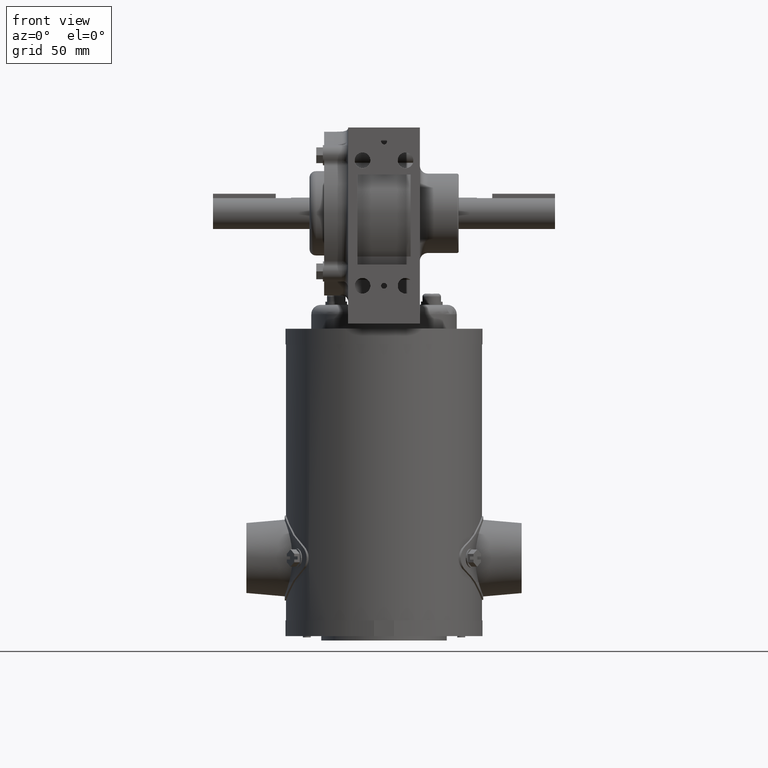
[diagram: clean part render]
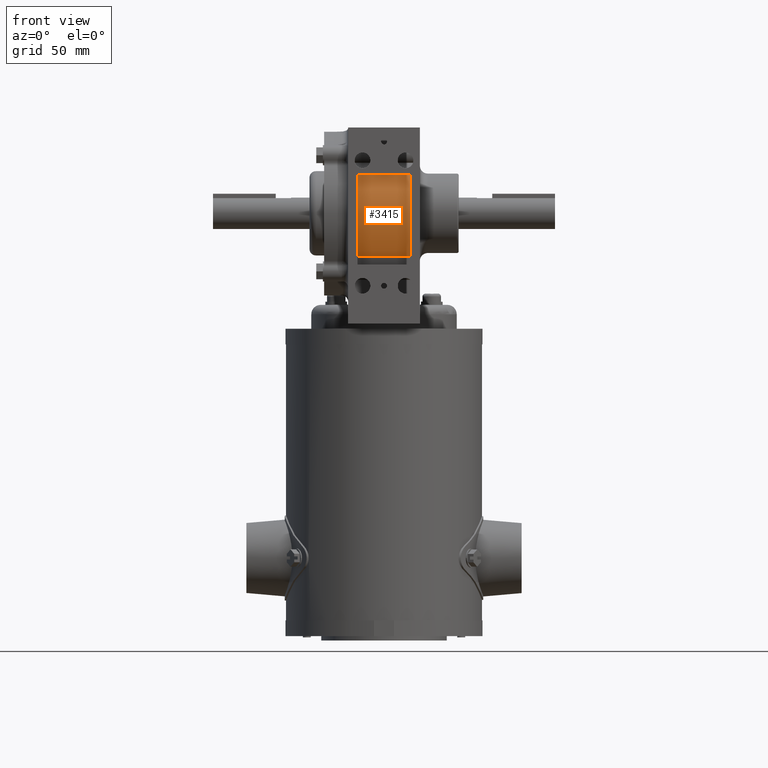
[diagram: same view with one face highlighted and labeled with its STEP entity id]
A machine part, front view. The second image highlights one B-rep face of the part: STEP entity #3415.
In plain terms, the highlighted cylindrical surface (partial cylindrical patch) has radius 33.2613 mm, axis along (-1, 0, 0).
Its self-contained STEP definition (entity closure, byte-faithful):
#2546 = CIRCLE ( 'NONE', #25468, 1.309499999999999900 ) ;
#2706 = EDGE_CURVE ( 'NONE', #25437, #2937, #2546, .T. ) ;
#2937 = VERTEX_POINT ( 'NONE', #6318 ) ;
#3415 = ADVANCED_FACE ( 'NONE', ( #7126 ), #5804, .T. ) ;
#4628 = ORIENTED_EDGE ( 'NONE', *, *, #10393, .T. ) ;
#5449 = DIRECTION ( 'NONE',  ( -1.000000000000000000, 0.0000000000000000000, 0.0000000000000000000 ) ) ;
#5804 = CYLINDRICAL_SURFACE ( 'NONE', #21946, 1.309499999999999900 ) ;
#5839 = LINE ( 'NONE', #10033, #17166 ) ;
#6318 = CARTESIAN_POINT ( 'NONE',  ( -0.4249999999999999900, -2.540552327007745200, 0.9235000000000001000 ) ) ;
#6632 = CARTESIAN_POINT ( 'NONE',  ( 0.5284000000000000900, -2.499999999999999600, -0.3827261387937567200 ) ) ;
#7126 = FACE_OUTER_BOUND ( 'NONE', #24832, .T. ) ;
#7325 = CARTESIAN_POINT ( 'NONE',  ( 0.4249999999999999900, -2.540552327007745200, 0.9235000000000001000 ) ) ;
#7656 = VERTEX_POINT ( 'NONE', #7325 ) ;
#8729 = CARTESIAN_POINT ( 'NONE',  ( 0.4249999999999999900, -1.385999999999999900, 0.3056010000000004000 ) ) ;
#10033 = CARTESIAN_POINT ( 'NONE',  ( 0.5284000000000000900, -2.540552327007745200, 0.9235000000000001000 ) ) ;
#10393 = EDGE_CURVE ( 'NONE', #25437, #22455, #13515, .T. ) ;
#10746 = EDGE_CURVE ( 'NONE', #2937, #7656, #5839, .T. ) ;
#10872 = DIRECTION ( 'NONE',  ( 0.0000000000000000000, 0.0000000000000000000, 1.000000000000000000 ) ) ;
#13515 = LINE ( 'NONE', #6632, #23446 ) ;
#14915 = EDGE_CURVE ( 'NONE', #22455, #7656, #25293, .T. ) ;
#16097 = CARTESIAN_POINT ( 'NONE',  ( -0.4249999999999999900, -2.499999999999999600, -0.3827261387937567200 ) ) ;
#17166 = VECTOR ( 'NONE', #24817, 39.37007874015748100 ) ;
#17677 = CARTESIAN_POINT ( 'NONE',  ( 0.5284000000000000900, -1.385999999999999900, 0.3056010000000004000 ) ) ;
#18175 = CARTESIAN_POINT ( 'NONE',  ( -0.4249999999999999300, -1.385999999999999900, 0.3056010000000004000 ) ) ;
#18442 = ORIENTED_EDGE ( 'NONE', *, *, #10746, .F. ) ;
#19347 = DIRECTION ( 'NONE',  ( 1.000000000000000000, -0.0000000000000000000, -0.0000000000000000000 ) ) ;
#19537 = ORIENTED_EDGE ( 'NONE', *, *, #2706, .F. ) ;
#20272 = DIRECTION ( 'NONE',  ( 0.0000000000000000000, 0.0000000000000000000, 1.000000000000000000 ) ) ;
#21911 = DIRECTION ( 'NONE',  ( -1.000000000000000000, 0.0000000000000000000, 0.0000000000000000000 ) ) ;
#21926 = AXIS2_PLACEMENT_3D ( 'NONE', #8729, #23564, #10872 ) ;
#21946 = AXIS2_PLACEMENT_3D ( 'NONE', #17677, #21911, #24012 ) ;
#22455 = VERTEX_POINT ( 'NONE', #25870 ) ;
#23446 = VECTOR ( 'NONE', #19347, 39.37007874015748100 ) ;
#23564 = DIRECTION ( 'NONE',  ( -1.000000000000000000, 0.0000000000000000000, 0.0000000000000000000 ) ) ;
#24012 = DIRECTION ( 'NONE',  ( 0.0000000000000000000, 0.0000000000000000000, 1.000000000000000000 ) ) ;
#24817 = DIRECTION ( 'NONE',  ( 1.000000000000000000, -0.0000000000000000000, -0.0000000000000000000 ) ) ;
#24832 = EDGE_LOOP ( 'NONE', ( #19537, #4628, #26802, #18442 ) ) ;
#25293 = CIRCLE ( 'NONE', #21926, 1.309499999999999900 ) ;
#25437 = VERTEX_POINT ( 'NONE', #16097 ) ;
#25468 = AXIS2_PLACEMENT_3D ( 'NONE', #18175, #5449, #20272 ) ;
#25870 = CARTESIAN_POINT ( 'NONE',  ( 0.4249999999999999900, -2.499999999999999600, -0.3827261387937567200 ) ) ;
#26802 = ORIENTED_EDGE ( 'NONE', *, *, #14915, .T. ) ;